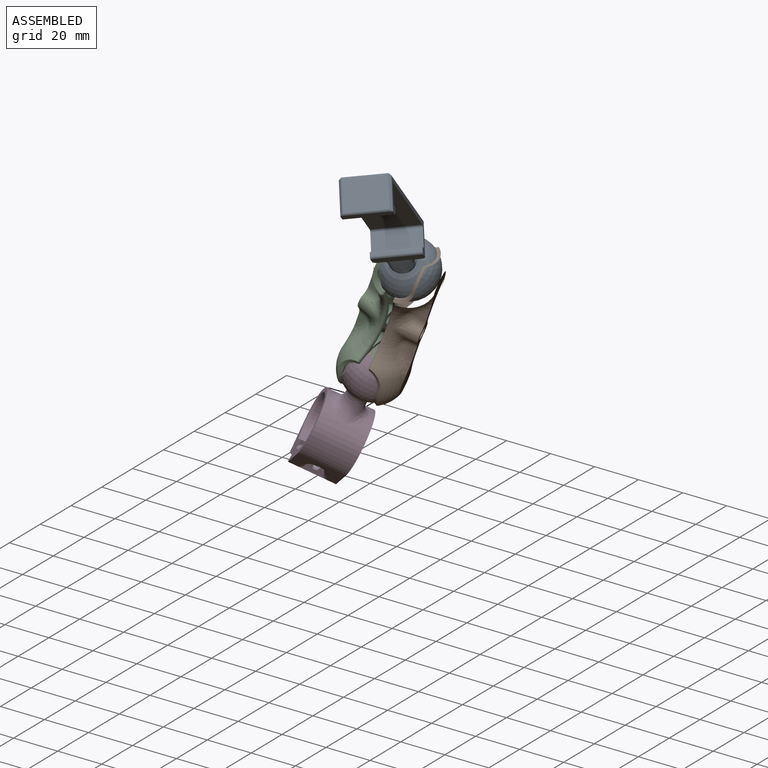
[diagram: assembled view]
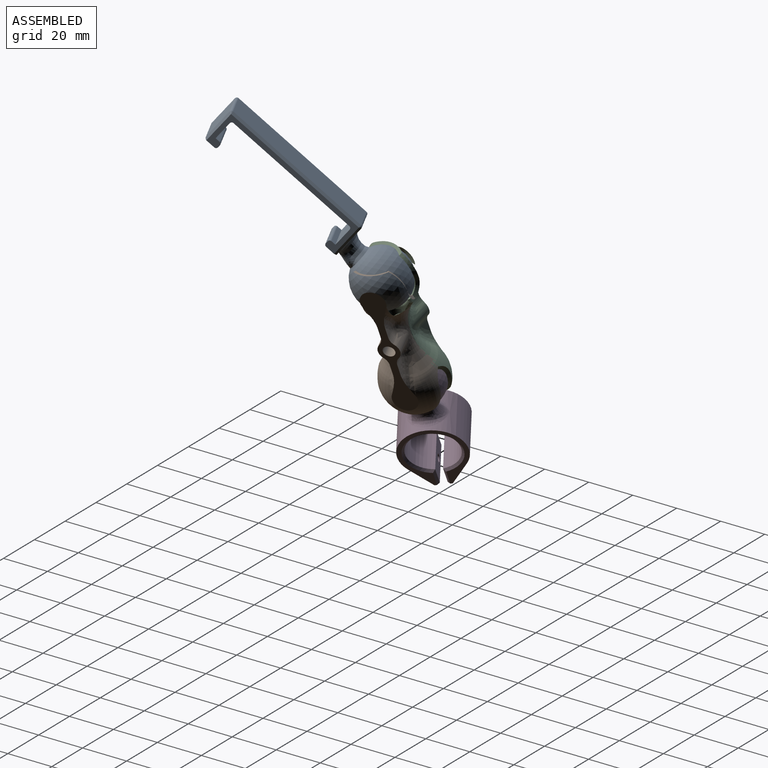
[diagram: assembled view, second angle]
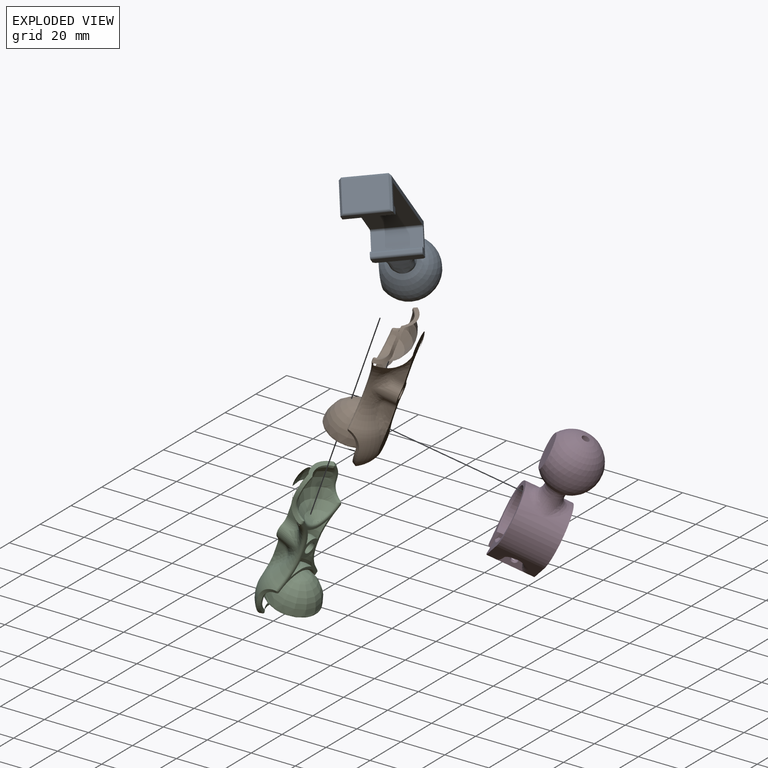
[diagram: exploded view]
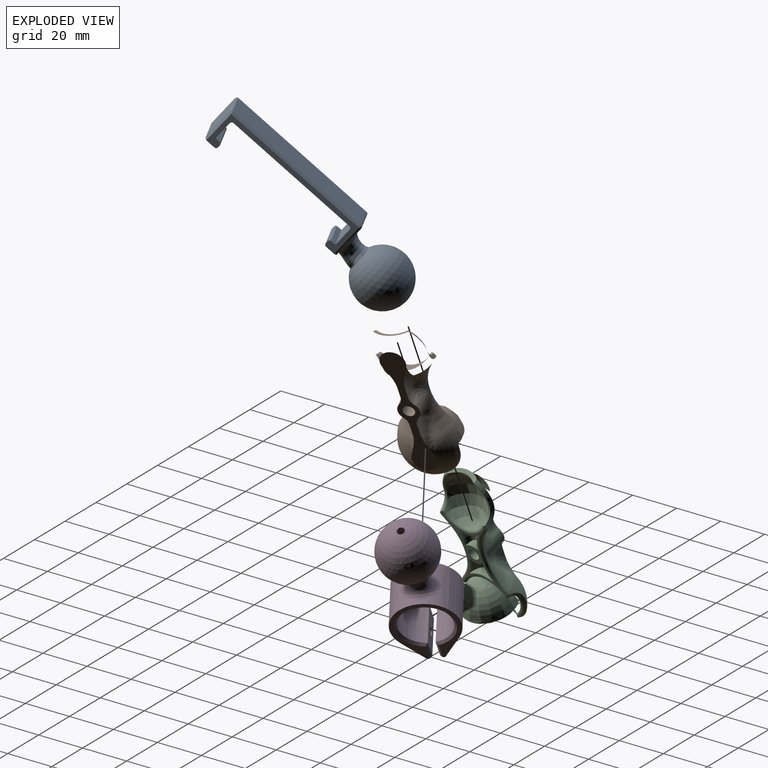
[diagram: exploded view, second angle]
ASSEMBLY  parts=4 mates=4
PART A: 46 faces, bbox 98.6x25.9x25.9 mm
  f0: plane 18.06x11.56mm, normal (-1,0,0), area 79.7mm2, adj f19,f29,f36,f45
  f1: plane 5.66x3.37mm, normal (-1,0,0), area 4.8mm2, adj f8,f20,f45
  f2: sphere r=12.5mm, area 1668.1mm2, adj f3,f18,f19,f20,f21,f22
  f3: plane 15x15mm, normal (0,0,-1), area 176.7mm2, adj f2
  f4: plane 5.66x3.37mm, normal (-1,0,0), area 4.8mm2, adj f8,f21,f36
  f5: plane 20x8mm, normal (1,0,0), area 160mm2, adj f6,f16,f17,f35
  f6: plane 20x2mm, normal (0,-1,0), area 40mm2, adj f5,f16,f17,f27
  f7: plane 20x1mm, normal (1,0,0), area 20mm2, adj f16,f17,f27,f28
  f8: plane 20x5mm, normal (0,1,0), area 99mm2, adj f1,f4,f16,f17,f18,f28,f36,f45
  f9: plane 64x18mm, normal (0,-1,0), area 1152mm2, adj f29,f30,f38,f43
  f10: plane 18x13mm, normal (1,0,0), area 234mm2, adj f30,f31,f40,f41
  f11: plane 20x4mm, normal (0,1,0), area 80mm2, adj f16,f17,f31,f32
  f12: plane 20x1mm, normal (-1,0,0), area 20mm2, adj f16,f17,f32,f33
  f13: plane 20x2mm, normal (0,-1,0), area 40mm2, adj f14,f16,f17,f33
  f14: plane 20x8mm, normal (-1,0,0), area 160mm2, adj f13,f16,f17,f34
  f15: plane 58x20mm, normal (0,1,0), area 1160mm2, adj f16,f17,f34,f35
  f16: plane 64x14mm, normal (0,0,1), area 193.6mm2, adj f5,f6,f7,f8,f11,f12,f13,f14
  f17: plane 64x14mm, normal (0,0,-1), area 193.6mm2, adj f5,f6,f7,f8,f11,f12,f13,f14
  f18: bspline ~14.32x8mm, area 52.9mm2, adj f2,f8,f20,f21
  f19: bspline ~18x13.55mm, area 213.6mm2, adj f0,f2,f20,f21
  f20: bspline ~11.31x8.33mm, area 31.4mm2, adj f1,f2,f18,f19
  f21: bspline ~11.31x8.33mm, area 31.4mm2, adj f2,f4,f18,f19
  f22: cone r=1.62mm half-angle=3deg, axis (-1,0,0), area 33.7mm2, adj f2,f23
  f23: sphere r=9mm, area 804.6mm2, adj f22,f24,f25
  f24: plane 8.83x8.83mm, normal (-1,0,0), area 60.2mm2, adj f23,f26
  f25: plane 12.45x12.45mm, normal (0,0,1), area 121.7mm2, adj f23
  f26: cone r=1.62mm half-angle=3deg, axis (-1,0,0), area 18.7mm2, adj f24
  f27: cylinder r=1mm len=20mm, axis (0,0,1), area 31.4mm2, adj f6,f7,f16,f17
  f28: cylinder r=1mm len=20mm, axis (0,0,-1), area 31.4mm2, adj f7,f8,f16,f17
  f29: cylinder r=1mm len=18mm, axis (0,0,-1), area 28.3mm2, adj f0,f9,f37,f44
  f30: cylinder r=1mm len=18mm, axis (0,0,-1), area 28.3mm2, adj f9,f10,f39,f42
  f31: cylinder r=1mm len=20mm, axis (0,0,-1), area 29.8mm2, adj f10,f11,f40,f41
  f32: cylinder r=1mm len=20mm, axis (0,0,-1), area 31.4mm2, adj f11,f12,f16,f17
  f33: cylinder r=1mm len=20mm, axis (0,0,1), area 31.4mm2, adj f12,f13,f16,f17
  f34: cylinder r=1mm len=20mm, axis (0,0,1), area 31.4mm2, adj f14,f15,f16,f17
  f35: cylinder r=1mm len=20mm, axis (0,0,1), area 31.4mm2, adj f5,f15,f16,f17
  f36: plane 14x1mm, normal (-0.71,0,0.71), area 19.8mm2, adj f0,f4,f8,f16,f37
  f37: cone r=1mm half-angle=45deg, axis (0,0,-1), area 1.1mm2, adj f29,f36,f38
  f38: plane 64x1mm, normal (0,-0.71,0.71), area 90.5mm2, adj f9,f16,f37,f39
  f39: cone r=1mm half-angle=45deg, axis (0,0,-1), area 1.1mm2, adj f30,f38,f40
  f40: plane 14.42x1.42mm, normal (0.71,0,0.71), area 19.5mm2, adj f10,f16,f31,f39
  f41: plane 14.42x1.42mm, normal (0.71,0,-0.71), area 19.5mm2, adj f10,f17,f31,f42
  f42: cone r=1mm half-angle=45deg, axis (0,0,1), area 1.1mm2, adj f30,f41,f43
  f43: plane 64x1mm, normal (0,-0.71,-0.71), area 90.5mm2, adj f9,f17,f42,f44
  f44: cone r=1mm half-angle=45deg, axis (0,0,1), area 1.1mm2, adj f29,f43,f45
  f45: plane 14x1mm, normal (-0.71,0,-0.71), area 19.8mm2, adj f0,f1,f8,f17,f44
PART B: 87 faces, bbox 72.1x19x28.1 mm
  f0: plane 59.78x10.4mm, normal (0,1,0), area 338mm2, adj f1,f2,f7,f13,f14,f15,f19,f21
  f1: plane 4.98x3.76mm, normal (0,0,1), area 10.1mm2, adj f0,f19,f20,f21
  f2: plane 4.98x3.76mm, normal (0,0,-1), area 10.1mm2, adj f0,f24,f25,f26
  f3: revolved ~14.78x8.77mm, area 71.8mm2, adj f7,f24,f26,f28,f42,f77
  f4: plane 9.69x5.17mm, normal (0,-1,0), area 6.9mm2, adj f10,f12,f31,f32,f37
  f5: revolved ~22.89x20.47mm, area 471.5mm2, adj f34,f35,f36,f37,f38,f39
  f6: revolved ~14.78x8.77mm, area 71.8mm2, adj f7,f19,f20,f23,f45,f84
  f7: revolved ~27.88x20.27mm, area 464.7mm2, adj f0,f3,f6,f19,f24,f29,f30,f31
  f8: plane 34.89x21.56mm, normal (0,-1,0), area 123mm2, adj f13,f16,f17,f18,f34,f51,f52,f53
  f9: plane 9.69x5.17mm, normal (0,-1,0), area 6.9mm2, adj f11,f12,f30,f31,f38
  f10: cylinder r=6.5mm len=6.41mm, axis (0,0,1), area 5.7mm2, adj f4,f33,f34,f35,f81
  f11: cylinder r=6.5mm len=6.41mm, axis (0,0,1), area 5.7mm2, adj f9,f29,f34,f36,f75
  f12: cylinder r=9mm len=12.45mm, axis (1,0,0), area 11.1mm2, adj f4,f9,f31,f37,f38,f39
  f13: cylinder r=2.5mm len=13mm, axis (0,1,0), area 204.2mm2, adj f0,f8
  f14: cylinder r=4.5mm len=9.88mm, axis (0,1,0), area 50.1mm2, adj f0,f25,f28,f60,f63
  f15: cylinder r=4.5mm len=9.88mm, axis (0,1,0), area 50.1mm2, adj f0,f21,f23,f56,f58
  f16: revolved ~11.81x5.9mm, area 58.7mm2, adj f8,f17
  f17: revolved ~11.81x8.55mm, area 120.3mm2, adj f8,f16,f18
  f18: cylinder r=4.5mm len=6.32mm, axis (0,1,0), area 17.8mm2, adj f8,f17
  f19: bspline ~12.49x9.13mm, area 25.5mm2, adj f0,f1,f6,f7,f20
  f20: bspline ~9.56x8.32mm, area 36.1mm2, adj f1,f6,f19,f22
  f21: cylinder r=5mm len=3.75mm, axis (0,1,0), area 15.3mm2, adj f0,f1,f15,f22
  f22: sphere r=5mm, area 20.4mm2, adj f20,f21,f23
  f23: bspline ~10.34x8.54mm, area 33.7mm2, adj f6,f15,f22,f58
  f24: bspline ~13.1x9.66mm, area 25.5mm2, adj f0,f2,f3,f7,f26
  f25: cylinder r=5mm len=3.75mm, axis (0,1,0), area 15.3mm2, adj f0,f2,f14,f27
  f26: bspline ~9.56x8.32mm, area 36.1mm2, adj f2,f3,f24,f27
  f27: sphere r=5mm, area 20.4mm2, adj f25,f26,f28
  f28: bspline ~9.38x7.96mm, area 33.7mm2, adj f3,f14,f27,f63
  f29: bspline ~7.76x6.42mm, area 16mm2, adj f7,f11,f30,f75,f76
  f30: bspline ~11.42x7.33mm, area 19.3mm2, adj f7,f9,f29,f31
  f31: bspline ~15.24x4.31mm, area 27mm2, adj f4,f7,f9,f12,f30,f32
  f32: bspline ~11.42x7.33mm, area 19.3mm2, adj f4,f7,f31,f33
  f33: bspline ~7.76x6.42mm, area 16mm2, adj f7,f10,f32,f81,f82
  f34: bspline ~21.95x7.72mm, area 36.2mm2, adj f5,f8,f10,f11,f35,f36,f75,f81
  f35: bspline ~8.5x6.98mm, area 9.1mm2, adj f5,f10,f34,f37
  f36: bspline ~8.5x6.98mm, area 9.1mm2, adj f5,f11,f34,f38
  f37: bspline ~10.93x5.33mm, area 10mm2, adj f4,f5,f12,f35,f39
  f38: bspline ~10.93x5.33mm, area 10mm2, adj f5,f9,f12,f36,f39
  f39: bspline ~14.29x3.88mm, area 9.7mm2, adj f5,f12,f37,f38
  f40: plane 4.98x3.76mm, normal (0,0,1), area 10.1mm2, adj f0,f54,f55,f56
  f41: plane 4.98x3.76mm, normal (0,0,-1), area 10.1mm2, adj f0,f59,f60,f61
  f42: revolved ~14.78x8.77mm, area 71.8mm2, adj f3,f46,f59,f61,f63,f78
  f43: plane 9.69x5.17mm, normal (0,-1,0), area 6.9mm2, adj f48,f50,f66,f67,f72
  f44: revolved ~22.89x20.47mm, area 471.5mm2, adj f69,f70,f71,f72,f73,f74
  f45: revolved ~14.78x8.77mm, area 71.8mm2, adj f6,f46,f54,f55,f58,f86
  f46: revolved ~27.88x20.27mm, area 464.6mm2, adj f0,f42,f45,f54,f59,f64,f65,f66
  f47: plane 9.69x5.17mm, normal (0,-1,0), area 6.9mm2, adj f49,f50,f65,f66,f73
  f48: cylinder r=6.5mm len=6.41mm, axis (0,0,1), area 5.7mm2, adj f43,f68,f69,f70,f83
  f49: cylinder r=6.5mm len=6.41mm, axis (0,0,1), area 5.7mm2, adj f47,f64,f69,f71,f80
  f50: cylinder r=9mm len=12.45mm, axis (-1,0,0), area 11.1mm2, adj f43,f47,f66,f72,f73,f74
  f51: revolved ~11.81x5.9mm, area 58.7mm2, adj f8,f52
  f52: revolved ~11.81x8.55mm, area 120.3mm2, adj f8,f51,f53
  f53: cylinder r=4.5mm len=6.32mm, axis (0,1,0), area 17.8mm2, adj f8,f52
  f54: bspline ~13.1x9.66mm, area 25.5mm2, adj f0,f40,f45,f46,f55
  f55: bspline ~9.56x8.32mm, area 36.1mm2, adj f40,f45,f54,f57
  f56: cylinder r=5mm len=3.75mm, axis (0,1,0), area 15.3mm2, adj f0,f15,f40,f57
  f57: sphere r=5mm, area 16.3mm2, adj f55,f56,f58
  f58: bspline ~10.05x8.54mm, area 33.7mm2, adj f15,f23,f45,f57
  f59: bspline ~12.49x9.13mm, area 25.5mm2, adj f0,f41,f42,f46,f61
  f60: cylinder r=5mm len=3.75mm, axis (0,1,0), area 15.3mm2, adj f0,f14,f41,f62
  f61: bspline ~9.56x8.32mm, area 36.1mm2, adj f41,f42,f59,f62
  f62: sphere r=5mm, area 20.4mm2, adj f60,f61,f63
  f63: bspline ~9.72x7.96mm, area 33.7mm2, adj f14,f28,f42,f62
  f64: bspline ~7.97x7.55mm, area 16mm2, adj f46,f49,f65,f79,f80
  f65: bspline ~11.42x7.33mm, area 19.3mm2, adj f46,f47,f64,f66
  f66: bspline ~15.99x4.66mm, area 27mm2, adj f43,f46,f47,f50,f65,f67
  f67: bspline ~10.29x5.59mm, area 19.3mm2, adj f43,f46,f66,f68
  f68: bspline ~7.76x6.42mm, area 16mm2, adj f46,f48,f67,f83,f85
  f69: bspline ~21.95x7.72mm, area 36.2mm2, adj f8,f44,f48,f49,f70,f71,f80,f83
  f70: bspline ~8.5x6.98mm, area 9.1mm2, adj f44,f48,f69,f72
  f71: bspline ~8.5x6.98mm, area 9.1mm2, adj f44,f49,f69,f73
  f72: bspline ~10.93x5.33mm, area 10mm2, adj f43,f44,f50,f70,f74
  f73: bspline ~10.93x5.33mm, area 10mm2, adj f44,f47,f50,f71,f74
  f74: bspline ~14.29x3.88mm, area 9.7mm2, adj f44,f50,f72,f73
  f75: bspline ~2.26x1.82mm, area 1.9mm2, adj f8,f11,f29,f34,f76
  f76: bspline ~3.63x3.01mm, area 3.6mm2, adj f7,f8,f29,f75,f77
  f77: bspline ~21.28x7mm, area 28.5mm2, adj f3,f7,f8,f76,f78
  f78: bspline ~21.28x7mm, area 28.5mm2, adj f8,f42,f46,f77,f79
  f79: bspline ~3.63x3.01mm, area 3.6mm2, adj f8,f46,f64,f78,f80
  f80: bspline ~2.41x1.9mm, area 1.9mm2, adj f8,f49,f64,f69,f79
  f81: bspline ~2.26x1.82mm, area 1.9mm2, adj f8,f10,f33,f34,f82
  f82: bspline ~3.63x3.01mm, area 3.6mm2, adj f7,f8,f33,f81,f84
  f83: bspline ~2.41x1.9mm, area 1.9mm2, adj f8,f48,f68,f69,f85
  f84: bspline ~21.28x7mm, area 28.5mm2, adj f6,f7,f8,f82,f86
  f85: bspline ~3.63x3.01mm, area 3.6mm2, adj f8,f46,f68,f83,f86
  f86: bspline ~21.28x7mm, area 28.5mm2, adj f8,f45,f46,f84,f85
PART C: same geometry as B
PART D: 34 faces, bbox 27.5x64.3x25 mm
  f0: cylinder r=10.75mm len=21.5mm, axis (0,0,-1), area 1153.3mm2, adj f6,f7,f23,f29,f32
  f1: cylinder r=13.75mm len=27.5mm, axis (0,0,-1), area 1205.2mm2, adj f3,f4,f9,f10,f19,f20
  f2: cylinder r=1.62mm len=3.25mm, axis (1,0,0), area 20.4mm2, adj f7,f13
  f3: plane 20x10.76mm, normal (-0.81,0.58,0), area 162.4mm2, adj f1,f8,f9,f10,f17
  f4: plane 20x10.76mm, normal (0.81,0.58,0), area 162.4mm2, adj f1,f5,f9,f10,f16
  f5: plane 20x2mm, normal (0,1,0), area 39mm2, adj f4,f6,f9,f10,f15,f30,f31
  f6: plane 18x8.11mm, normal (-1,0,0), area 137.6mm2, adj f0,f5,f11,f30,f31
  f7: plane 18x8.11mm, normal (1,0,0), area 137.6mm2, adj f0,f2,f8,f28,f33
  f8: plane 20x2mm, normal (0,1,0), area 39mm2, adj f3,f7,f9,f10,f13,f28,f33
  f9: plane 32.5x27.5mm, normal (0,0,1), area 192.5mm2, adj f1,f3,f4,f5,f8,f31,f32,f33
  f10: plane 32.5x27.5mm, normal (0,0,-1), area 192.5mm2, adj f1,f3,f4,f5,f8,f28,f29,f30
  f11: cylinder r=1.62mm len=3.25mm, axis (1,0,0), area 20.4mm2, adj f6,f15
  f12: cylinder r=3.25mm len=6.27mm, axis (1,0,0), area 0mm2, adj f13,f17
  f13: plane 12x6.75mm, normal (-1,0,0), area 37mm2, adj f2,f8,f12,f17
  f14: cylinder r=3.25mm len=6.27mm, axis (-1,0,0), area 0mm2, adj f15,f16
  f15: plane 12x6.75mm, normal (1,0,0), area 37mm2, adj f5,f11,f14,f16
  f16: bspline ~12.5x8.2mm, area 68.7mm2, adj f4,f14,f15
  f17: bspline ~12.5x8.2mm, area 68.7mm2, adj f3,f12,f13
  f18: revolved ~16.85x16.85mm, area 232.1mm2, adj f19,f20,f21
  f19: bspline ~16.85x8.55mm, area 0mm2, adj f1,f18
  f20: bspline ~16.85x8.55mm, area 0mm2, adj f1,f18
  f21: sphere r=12.5mm, area 1668.1mm2, adj f18,f22,f24
  f22: plane 15x15mm, normal (0,0,-1), area 176.7mm2, adj f21
  f23: cylinder r=1.62mm len=14.5mm, axis (0,-1,0), area 148mm2, adj f0,f26
  f24: cylinder r=1.62mm len=3.54mm, axis (0,-1,0), area 36.2mm2, adj f21,f25
  f25: sphere r=9mm, area 802.8mm2, adj f24,f26,f27
  f26: plane 8.83x8.83mm, normal (0,-1,0), area 52.9mm2, adj f23,f25
  f27: plane 12.45x12.45mm, normal (0,0,1), area 121.7mm2, adj f25
  f28: plane 8.14x1.03mm, normal (0.71,0,-0.71), area 10.9mm2, adj f7,f8,f10,f29
  f29: cone r=11.75mm half-angle=45deg, axis (0,0,-1), area 94.3mm2, adj f0,f10,f28,f30
  f30: plane 8.14x1.03mm, normal (-0.71,0,-0.71), area 10.9mm2, adj f5,f6,f10,f29
  f31: plane 8.14x1.03mm, normal (-0.71,0,0.71), area 10.9mm2, adj f5,f6,f9,f32
  f32: cone r=10.75mm half-angle=45deg, axis (0,0,1), area 94.3mm2, adj f0,f9,f31,f33
  f33: plane 8.14x1.03mm, normal (0.71,0,0.71), area 10.9mm2, adj f7,f8,f9,f32
PLACE A rot(axis=(-0.73,0.14,-0.67),122.9deg) t=(-9.34,-40.23,-13.01)mm
PLACE B rot(axis=(0.39,0.75,-0.53),127.2deg) t=(-25.12,-23.56,-51.03)mm
PLACE C rot(axis=(-0.41,0.67,0.63),128.6deg) t=(-23.29,-23.36,-51.71)mm
PLACE D rot(axis=(-0.8,0.55,-0.23),122deg) t=(-48.86,-24.5,-104.03)mm
MATE ball B.f3 <-> D.f21  axis (0.35,-0.05,0.93) through (-33.2,-22.04,-74.98)mm
MATE ball D.f21 <-> C.f3  axis (0.75,0.49,-0.45) through (-33.2,-22.04,-74.98)mm
MATE ball C.f3 <-> A.f2  axis (-0.35,0.05,-0.93) through (-15.24,-24.48,-27.73)mm
MATE ball B.f3 <-> A.f2  axis (-0.35,0.05,-0.93) through (-15.24,-24.48,-27.73)mm
